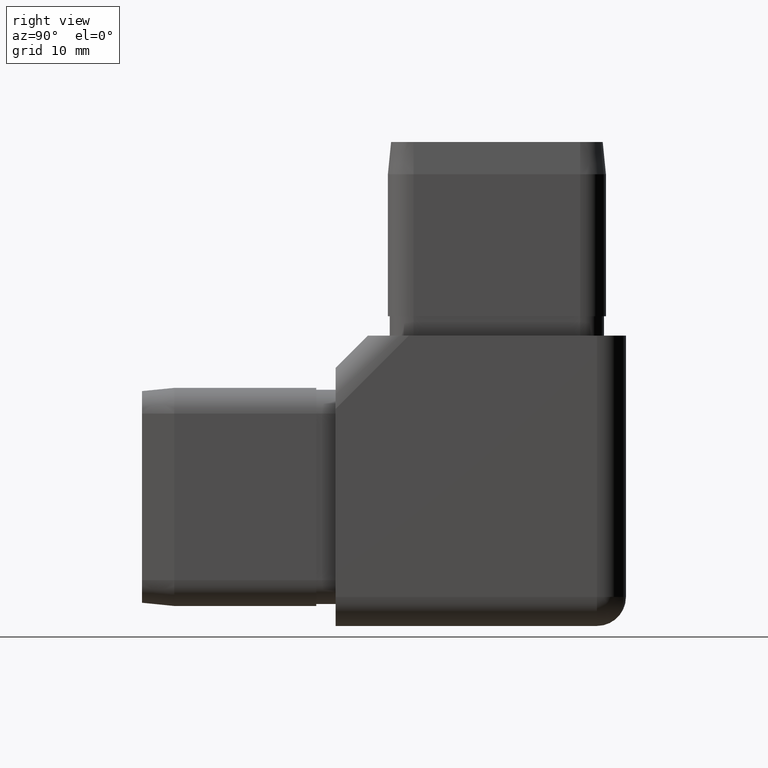
[diagram: clean part render]
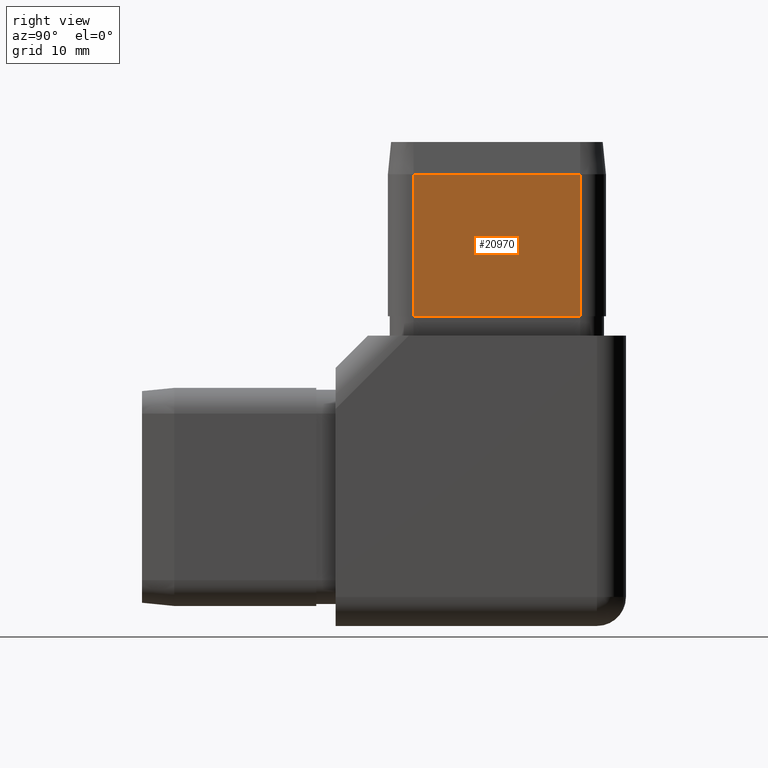
[diagram: same view with one face highlighted and labeled with its STEP entity id]
A machine part, right view. The second image highlights one B-rep face of the part: STEP entity #20970.
In plain terms, the highlighted planar face has unit normal (-1, 0, 0).
Its self-contained STEP definition (entity closure, byte-faithful):
#376 = EDGE_CURVE ( 'NONE', #5758, #15010, #19953, .T. ) ;
#2170 = FACE_OUTER_BOUND ( 'NONE', #22569, .T. ) ;
#2798 = VERTEX_POINT ( 'NONE', #9777 ) ;
#5549 = ORIENTED_EDGE ( 'NONE', *, *, #13277, .T. ) ;
#5758 = VERTEX_POINT ( 'NONE', #18428 ) ;
#6356 = CARTESIAN_POINT ( 'NONE',  ( 16.90000000000000900, 19.40000000000000200, 52.50000000000000000 ) ) ;
#6552 = LINE ( 'NONE', #14647, #14634 ) ;
#6784 = DIRECTION ( 'NONE',  ( 0.0000000000000000000, -1.000000000000000000, 0.0000000000000000000 ) ) ;
#8229 = CARTESIAN_POINT ( 'NONE',  ( 16.90000000000000900, -10.40000000000000000, 52.50000000000000000 ) ) ;
#9777 = CARTESIAN_POINT ( 'NONE',  ( 16.90000000000001300, -10.39999999999999900, 47.50000000000000000 ) ) ;
#10615 = PLANE ( 'NONE',  #19698 ) ;
#10841 = ORIENTED_EDGE ( 'NONE', *, *, #24991, .T. ) ;
#11124 = DIRECTION ( 'NONE',  ( -1.000000000000000000, 0.0000000000000000000, 0.0000000000000000000 ) ) ;
#11237 = CARTESIAN_POINT ( 'NONE',  ( 16.90000000000000900, 15.40000000000000000, 52.50000000000000000 ) ) ;
#11637 = VECTOR ( 'NONE', #21605, 1000.000000000000000 ) ;
#12478 = VERTEX_POINT ( 'NONE', #15398 ) ;
#13277 = EDGE_CURVE ( 'NONE', #2798, #15010, #21180, .T. ) ;
#13913 = LINE ( 'NONE', #11237, #11637 ) ;
#14097 = DIRECTION ( 'NONE',  ( 0.0000000000000000000, -1.000000000000000000, 0.0000000000000000000 ) ) ;
#14634 = VECTOR ( 'NONE', #6784, 1000.000000000000000 ) ;
#14647 = CARTESIAN_POINT ( 'NONE',  ( 16.90000000000001300, 15.40000000000000200, 47.50000000000000000 ) ) ;
#15010 = VERTEX_POINT ( 'NONE', #25882 ) ;
#15190 = EDGE_CURVE ( 'NONE', #5758, #12478, #13913, .T. ) ;
#15398 = CARTESIAN_POINT ( 'NONE',  ( 16.90000000000001300, 15.40000000000000200, 47.50000000000000000 ) ) ;
#15819 = ORIENTED_EDGE ( 'NONE', *, *, #15190, .T. ) ;
#15867 = ORIENTED_EDGE ( 'NONE', *, *, #376, .F. ) ;
#16682 = VECTOR ( 'NONE', #20662, 1000.000000000000000 ) ;
#18428 = CARTESIAN_POINT ( 'NONE',  ( 16.90000000000001300, 15.40000000000000200, 25.50000000000000000 ) ) ;
#19293 = VECTOR ( 'NONE', #14097, 1000.000000000000000 ) ;
#19698 = AXIS2_PLACEMENT_3D ( 'NONE', #6356, #11124, #25546 ) ;
#19953 = LINE ( 'NONE', #24612, #19293 ) ;
#20662 = DIRECTION ( 'NONE',  ( 0.0000000000000000000, 0.0000000000000000000, -1.000000000000000000 ) ) ;
#20970 = ADVANCED_FACE ( 'NONE', ( #2170 ), #10615, .F. ) ;
#21180 = LINE ( 'NONE', #8229, #16682 ) ;
#21605 = DIRECTION ( 'NONE',  ( -0.0000000000000000000, -0.0000000000000000000, 1.000000000000000000 ) ) ;
#22569 = EDGE_LOOP ( 'NONE', ( #15819, #10841, #5549, #15867 ) ) ;
#24612 = CARTESIAN_POINT ( 'NONE',  ( 16.90000000000001300, 15.40000000000000200, 25.50000000000000000 ) ) ;
#24991 = EDGE_CURVE ( 'NONE', #12478, #2798, #6552, .T. ) ;
#25546 = DIRECTION ( 'NONE',  ( 0.0000000000000000000, 0.0000000000000000000, 1.000000000000000000 ) ) ;
#25882 = CARTESIAN_POINT ( 'NONE',  ( 16.90000000000001300, -10.39999999999999900, 25.50000000000000000 ) ) ;